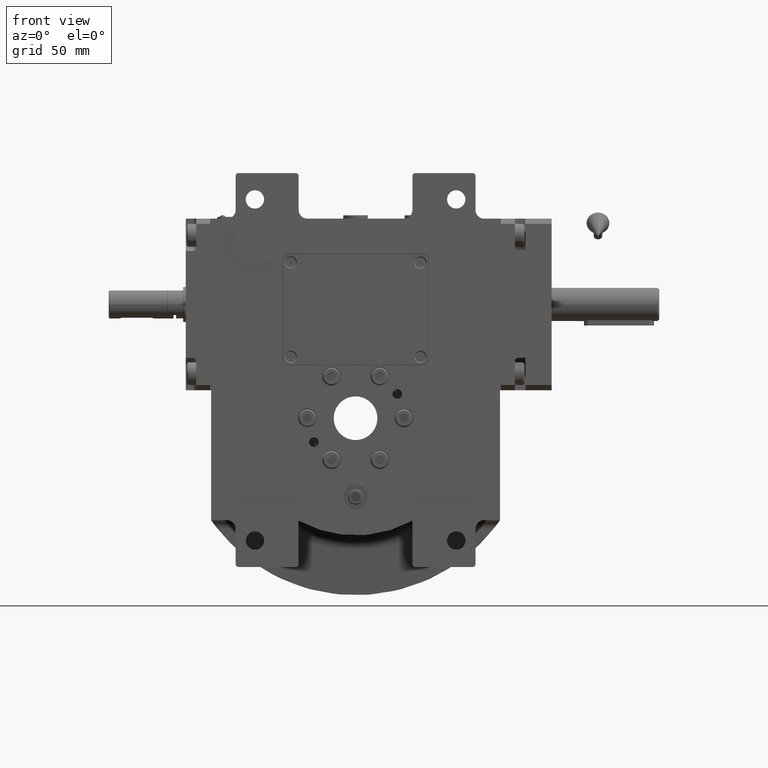
[diagram: clean part render]
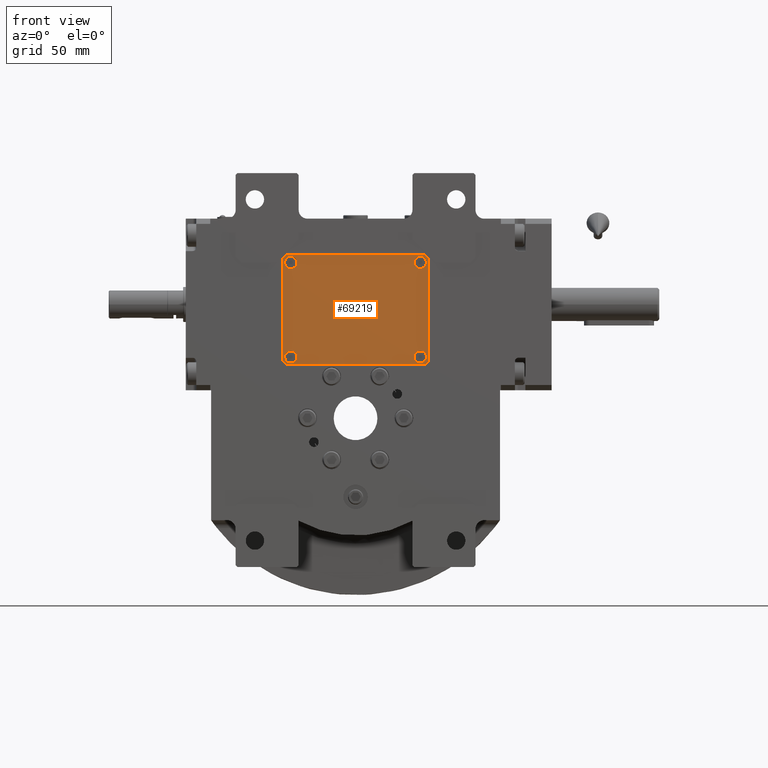
[diagram: same view with one face highlighted and labeled with its STEP entity id]
A machine part, front view. The second image highlights one B-rep face of the part: STEP entity #69219.
In plain terms, the highlighted planar face has unit normal (0, -1, 0).
Its self-contained STEP definition (entity closure, byte-faithful):
#981 = VECTOR ( 'NONE', #23255, 1000.000000000000114 ) ;
#1294 = DIRECTION ( 'NONE',  ( -1.000000000000000000, 0.000000000000000000, 0.000000000000000000 ) ) ;
#2329 = DIRECTION ( 'NONE',  ( 0.000000000000000000, 0.000000000000000000, 1.000000000000000000 ) ) ;
#2818 = AXIS2_PLACEMENT_3D ( 'NONE', #71284, #66825, #37547 ) ;
#3462 = EDGE_CURVE ( 'NONE', #20627, #44104, #50847, .T. ) ;
#4552 = DIRECTION ( 'NONE',  ( 0.000000000000000000, 0.000000000000000000, 1.000000000000000000 ) ) ;
#5549 = EDGE_CURVE ( 'NONE', #64476, #45176, #50048, .T. ) ;
#5794 = ORIENTED_EDGE ( 'NONE', *, *, #25991, .F. ) ;
#6117 = DIRECTION ( 'NONE',  ( -0.7071067811865474617, -0.7071067811865474617, 0.000000000000000000 ) ) ;
#6520 = DIRECTION ( 'NONE',  ( 0.000000000000000000, 1.000000000000000000, 0.000000000000000000 ) ) ;
#6781 = CARTESIAN_POINT ( 'NONE',  ( 39.50000000000000000, 31.50000000000000000, 3.000000000000002665 ) ) ;
#7286 = VERTEX_POINT ( 'NONE', #29936 ) ;
#8196 = EDGE_CURVE ( 'NONE', #45176, #64476, #23205, .T. ) ;
#8868 = FACE_BOUND ( 'NONE', #34823, .T. ) ;
#8919 = CARTESIAN_POINT ( 'NONE',  ( -37.00000000000000000, -26.99999999999999645, 3.000000000000002665 ) ) ;
#10971 = ORIENTED_EDGE ( 'NONE', *, *, #65126, .T. ) ;
#11998 = ORIENTED_EDGE ( 'NONE', *, *, #38756, .T. ) ;
#12132 = VECTOR ( 'NONE', #31314, 1000.000000000000000 ) ;
#12550 = EDGE_CURVE ( 'NONE', #27667, #22751, #34405, .T. ) ;
#12776 = CIRCLE ( 'NONE', #70181, 3.500000000000003109 ) ;
#12874 = CARTESIAN_POINT ( 'NONE',  ( -33.50000000000000000, -26.99999999999999645, 3.000000000000002665 ) ) ;
#13594 = DIRECTION ( 'NONE',  ( -1.000000000000000000, 0.000000000000000000, 0.000000000000000000 ) ) ;
#13657 = EDGE_CURVE ( 'NONE', #66613, #62956, #12776, .T. ) ;
#14049 = LINE ( 'NONE', #35735, #12132 ) ;
#14244 = CARTESIAN_POINT ( 'NONE',  ( -41.50000000000000000, -29.50000000000000000, 3.000000000000002665 ) ) ;
#15323 = EDGE_LOOP ( 'NONE', ( #5794, #23711 ) ) ;
#18560 = DIRECTION ( 'NONE',  ( 1.000000000000000000, -9.912705577010316675E-16, 0.000000000000000000 ) ) ;
#19085 = VERTEX_POINT ( 'NONE', #70470 ) ;
#19650 = VECTOR ( 'NONE', #6520, 1000.000000000000000 ) ;
#20627 = VERTEX_POINT ( 'NONE', #69301 ) ;
#21417 = VECTOR ( 'NONE', #6117, 1000.000000000000114 ) ;
#22751 = VERTEX_POINT ( 'NONE', #37251 ) ;
#23205 = CIRCLE ( 'NONE', #25509, 3.500000000000003109 ) ;
#23255 = DIRECTION ( 'NONE',  ( -0.7071067811865474617, 0.7071067811865474617, 0.000000000000000000 ) ) ;
#23605 = LINE ( 'NONE', #41182, #981 ) ;
#23711 = ORIENTED_EDGE ( 'NONE', *, *, #50075, .F. ) ;
#24985 = DIRECTION ( 'NONE',  ( 0.000000000000000000, 0.000000000000000000, 1.000000000000000000 ) ) ;
#25035 = CIRCLE ( 'NONE', #2818, 3.500000000000003109 ) ;
#25092 = AXIS2_PLACEMENT_3D ( 'NONE', #30864, #24985, #64929 ) ;
#25509 = AXIS2_PLACEMENT_3D ( 'NONE', #31944, #25714, #65656 ) ;
#25714 = DIRECTION ( 'NONE',  ( 0.000000000000000000, 0.000000000000000000, 1.000000000000000000 ) ) ;
#25763 = DIRECTION ( 'NONE',  ( 1.000000000000000000, 0.000000000000000000, 0.000000000000000000 ) ) ;
#25841 = VECTOR ( 'NONE', #53135, 1000.000000000000114 ) ;
#25847 = EDGE_CURVE ( 'NONE', #69511, #46148, #14049, .T. ) ;
#25850 = DIRECTION ( 'NONE',  ( 0.7071067811865441310, 0.7071067811865510144, 0.000000000000000000 ) ) ;
#25991 = EDGE_CURVE ( 'NONE', #71204, #7286, #25035, .T. ) ;
#26399 = EDGE_CURVE ( 'NONE', #62956, #66613, #38013, .T. ) ;
#27112 = ORIENTED_EDGE ( 'NONE', *, *, #12550, .T. ) ;
#27305 = LINE ( 'NONE', #65425, #41923 ) ;
#27667 = VERTEX_POINT ( 'NONE', #36064 ) ;
#27784 = CARTESIAN_POINT ( 'NONE',  ( -39.50000000000000000, 31.50000000000000000, 3.000000000000002665 ) ) ;
#27850 = CARTESIAN_POINT ( 'NONE',  ( -40.50000000000000000, -26.99999999999999645, 3.000000000000002665 ) ) ;
#28445 = CIRCLE ( 'NONE', #29589, 3.500000000000003109 ) ;
#29314 = CARTESIAN_POINT ( 'NONE',  ( 40.50000000000000000, 26.99999999999999645, 3.000000000000002665 ) ) ;
#29589 = AXIS2_PLACEMENT_3D ( 'NONE', #54853, #71714, #72067 ) ;
#29620 = EDGE_CURVE ( 'NONE', #44104, #46731, #48379, .T. ) ;
#29761 = CARTESIAN_POINT ( 'NONE',  ( -37.00000000000000000, 26.99999999999999645, 3.000000000000002665 ) ) ;
#29936 = CARTESIAN_POINT ( 'NONE',  ( 33.50000000000000000, -26.99999999999999645, 3.000000000000002665 ) ) ;
#30182 = FACE_BOUND ( 'NONE', #65501, .T. ) ;
#30864 = CARTESIAN_POINT ( 'NONE',  ( 37.00000000000000000, 26.99999999999999645, 3.000000000000002665 ) ) ;
#31314 = DIRECTION ( 'NONE',  ( 1.000000000000000000, 0.000000000000000000, 0.000000000000000000 ) ) ;
#31919 = CARTESIAN_POINT ( 'NONE',  ( -41.50000000000000000, 29.50000000000000000, 3.000000000000002665 ) ) ;
#31944 = CARTESIAN_POINT ( 'NONE',  ( -37.00000000000000000, -26.99999999999999645, 3.000000000000002665 ) ) ;
#32060 = ORIENTED_EDGE ( 'NONE', *, *, #29620, .T. ) ;
#32291 = DIRECTION ( 'NONE',  ( 0.000000000000000000, -1.000000000000000000, 0.000000000000000000 ) ) ;
#33320 = CARTESIAN_POINT ( 'NONE',  ( 41.50000000000000000, -29.50000000000000000, 3.000000000000002665 ) ) ;
#33887 = ORIENTED_EDGE ( 'NONE', *, *, #40331, .F. ) ;
#34405 = LINE ( 'NONE', #33320, #19650 ) ;
#34823 = EDGE_LOOP ( 'NONE', ( #63788, #44115 ) ) ;
#35735 = CARTESIAN_POINT ( 'NONE',  ( -39.50000000000000000, -31.50000000000000000, 3.000000000000002665 ) ) ;
#36064 = CARTESIAN_POINT ( 'NONE',  ( 41.50000000000000000, -29.50000000000000000, 3.000000000000002665 ) ) ;
#37251 = CARTESIAN_POINT ( 'NONE',  ( 41.50000000000000000, 29.50000000000000000, 3.000000000000002665 ) ) ;
#37547 = DIRECTION ( 'NONE',  ( 1.000000000000000000, 0.000000000000000000, 0.000000000000000000 ) ) ;
#37626 = CIRCLE ( 'NONE', #42296, 3.500000000000003109 ) ;
#38013 = CIRCLE ( 'NONE', #25092, 3.500000000000003109 ) ;
#38756 = EDGE_CURVE ( 'NONE', #22751, #52139, #23605, .T. ) ;
#40331 = EDGE_CURVE ( 'NONE', #44895, #19085, #51257, .T. ) ;
#41163 = FACE_BOUND ( 'NONE', #15323, .T. ) ;
#41182 = CARTESIAN_POINT ( 'NONE',  ( 41.50000000000000000, 29.50000000000000000, 3.000000000000002665 ) ) ;
#41923 = VECTOR ( 'NONE', #25850, 999.9999999999998863 ) ;
#42085 = EDGE_CURVE ( 'NONE', #46731, #69511, #63774, .T. ) ;
#42296 = AXIS2_PLACEMENT_3D ( 'NONE', #51937, #57094, #18560 ) ;
#42501 = DIRECTION ( 'NONE',  ( 0.000000000000000000, 0.000000000000000000, 1.000000000000000000 ) ) ;
#44104 = VERTEX_POINT ( 'NONE', #67851 ) ;
#44115 = ORIENTED_EDGE ( 'NONE', *, *, #13657, .F. ) ;
#44895 = VERTEX_POINT ( 'NONE', #70045 ) ;
#45176 = VERTEX_POINT ( 'NONE', #27850 ) ;
#46148 = VERTEX_POINT ( 'NONE', #59028 ) ;
#46731 = VERTEX_POINT ( 'NONE', #65542 ) ;
#47693 = CARTESIAN_POINT ( 'NONE',  ( 39.50000000000000000, 31.50000000000000000, 3.000000000000002665 ) ) ;
#48379 = LINE ( 'NONE', #31919, #69786 ) ;
#48472 = ORIENTED_EDGE ( 'NONE', *, *, #42085, .T. ) ;
#49135 = EDGE_LOOP ( 'NONE', ( #64488, #33887 ) ) ;
#50048 = CIRCLE ( 'NONE', #59398, 3.500000000000003109 ) ;
#50059 = VECTOR ( 'NONE', #1294, 1000.000000000000000 ) ;
#50075 = EDGE_CURVE ( 'NONE', #7286, #71204, #28445, .T. ) ;
#50847 = LINE ( 'NONE', #27784, #21417 ) ;
#51257 = CIRCLE ( 'NONE', #53617, 3.500000000000003109 ) ;
#51937 = CARTESIAN_POINT ( 'NONE',  ( -37.00000000000000000, 26.99999999999999645, 3.000000000000002665 ) ) ;
#52139 = VERTEX_POINT ( 'NONE', #47693 ) ;
#52540 = CARTESIAN_POINT ( 'NONE',  ( 0.000000000000000000, 0.000000000000000000, 3.000000000000002665 ) ) ;
#52796 = DIRECTION ( 'NONE',  ( -1.000000000000000000, 0.000000000000000000, 0.000000000000000000 ) ) ;
#53135 = DIRECTION ( 'NONE',  ( 0.7071067811865474617, -0.7071067811865474617, 0.000000000000000000 ) ) ;
#53617 = AXIS2_PLACEMENT_3D ( 'NONE', #29761, #63850, #13594 ) ;
#53627 = FACE_OUTER_BOUND ( 'NONE', #53841, .T. ) ;
#53841 = EDGE_LOOP ( 'NONE', ( #27112, #11998, #10971, #54922, #32060, #48472, #63250, #60062 ) ) ;
#54853 = CARTESIAN_POINT ( 'NONE',  ( 37.00000000000000000, -26.99999999999999645, 3.000000000000002665 ) ) ;
#54922 = ORIENTED_EDGE ( 'NONE', *, *, #3462, .T. ) ;
#56730 = EDGE_CURVE ( 'NONE', #19085, #44895, #37626, .T. ) ;
#57005 = LINE ( 'NONE', #6781, #50059 ) ;
#57094 = DIRECTION ( 'NONE',  ( 0.000000000000000000, 0.000000000000000000, 1.000000000000000000 ) ) ;
#58284 = CARTESIAN_POINT ( 'NONE',  ( 37.00000000000000000, 26.99999999999999645, 3.000000000000002665 ) ) ;
#58624 = CARTESIAN_POINT ( 'NONE',  ( -39.50000000000000000, -31.50000000000000000, 3.000000000000002665 ) ) ;
#59028 = CARTESIAN_POINT ( 'NONE',  ( 39.50000000000000000, -31.50000000000000000, 3.000000000000002665 ) ) ;
#59398 = AXIS2_PLACEMENT_3D ( 'NONE', #8919, #4552, #64657 ) ;
#59507 = ORIENTED_EDGE ( 'NONE', *, *, #8196, .F. ) ;
#60062 = ORIENTED_EDGE ( 'NONE', *, *, #67749, .T. ) ;
#62956 = VERTEX_POINT ( 'NONE', #29314 ) ;
#63101 = AXIS2_PLACEMENT_3D ( 'NONE', #52540, #2329, #25763 ) ;
#63250 = ORIENTED_EDGE ( 'NONE', *, *, #25847, .T. ) ;
#63774 = LINE ( 'NONE', #14244, #25841 ) ;
#63788 = ORIENTED_EDGE ( 'NONE', *, *, #26399, .F. ) ;
#63850 = DIRECTION ( 'NONE',  ( 0.000000000000000000, 0.000000000000000000, 1.000000000000000000 ) ) ;
#64476 = VERTEX_POINT ( 'NONE', #12874 ) ;
#64488 = ORIENTED_EDGE ( 'NONE', *, *, #56730, .F. ) ;
#64657 = DIRECTION ( 'NONE',  ( 1.000000000000000000, -9.912705577010316675E-16, 0.000000000000000000 ) ) ;
#64929 = DIRECTION ( 'NONE',  ( 1.000000000000000000, 0.000000000000000000, 0.000000000000000000 ) ) ;
#65126 = EDGE_CURVE ( 'NONE', #52139, #20627, #57005, .T. ) ;
#65425 = CARTESIAN_POINT ( 'NONE',  ( 39.50000000000000000, -31.50000000000000000, 3.000000000000002665 ) ) ;
#65501 = EDGE_LOOP ( 'NONE', ( #69886, #59507 ) ) ;
#65542 = CARTESIAN_POINT ( 'NONE',  ( -41.50000000000000000, -29.50000000000000000, 3.000000000000002665 ) ) ;
#65656 = DIRECTION ( 'NONE',  ( -1.000000000000000000, 0.000000000000000000, 0.000000000000000000 ) ) ;
#66407 = CARTESIAN_POINT ( 'NONE',  ( 40.50000000000000000, -26.99999999999999645, 3.000000000000002665 ) ) ;
#66613 = VERTEX_POINT ( 'NONE', #67112 ) ;
#66825 = DIRECTION ( 'NONE',  ( 0.000000000000000000, 0.000000000000000000, 1.000000000000000000 ) ) ;
#67112 = CARTESIAN_POINT ( 'NONE',  ( 33.50000000000000000, 26.99999999999999645, 3.000000000000002665 ) ) ;
#67749 = EDGE_CURVE ( 'NONE', #46148, #27667, #27305, .T. ) ;
#67851 = CARTESIAN_POINT ( 'NONE',  ( -41.50000000000000000, 29.50000000000000000, 3.000000000000002665 ) ) ;
#69038 = FACE_BOUND ( 'NONE', #49135, .T. ) ;
#69219 = ADVANCED_FACE ( 'NONE', ( #53627, #8868, #69038, #41163, #30182 ), #69397, .T. ) ;
#69301 = CARTESIAN_POINT ( 'NONE',  ( -39.50000000000000000, 31.50000000000000000, 3.000000000000002665 ) ) ;
#69397 = PLANE ( 'NONE',  #63101 ) ;
#69511 = VERTEX_POINT ( 'NONE', #58624 ) ;
#69786 = VECTOR ( 'NONE', #32291, 1000.000000000000000 ) ;
#69886 = ORIENTED_EDGE ( 'NONE', *, *, #5549, .F. ) ;
#70045 = CARTESIAN_POINT ( 'NONE',  ( -40.50000000000000000, 26.99999999999999645, 3.000000000000002665 ) ) ;
#70181 = AXIS2_PLACEMENT_3D ( 'NONE', #58284, #42501, #52796 ) ;
#70470 = CARTESIAN_POINT ( 'NONE',  ( -33.50000000000000000, 26.99999999999999645, 3.000000000000002665 ) ) ;
#71204 = VERTEX_POINT ( 'NONE', #66407 ) ;
#71284 = CARTESIAN_POINT ( 'NONE',  ( 37.00000000000000000, -26.99999999999999645, 3.000000000000002665 ) ) ;
#71714 = DIRECTION ( 'NONE',  ( 0.000000000000000000, 0.000000000000000000, 1.000000000000000000 ) ) ;
#72067 = DIRECTION ( 'NONE',  ( -1.000000000000000000, 0.000000000000000000, 0.000000000000000000 ) ) ;